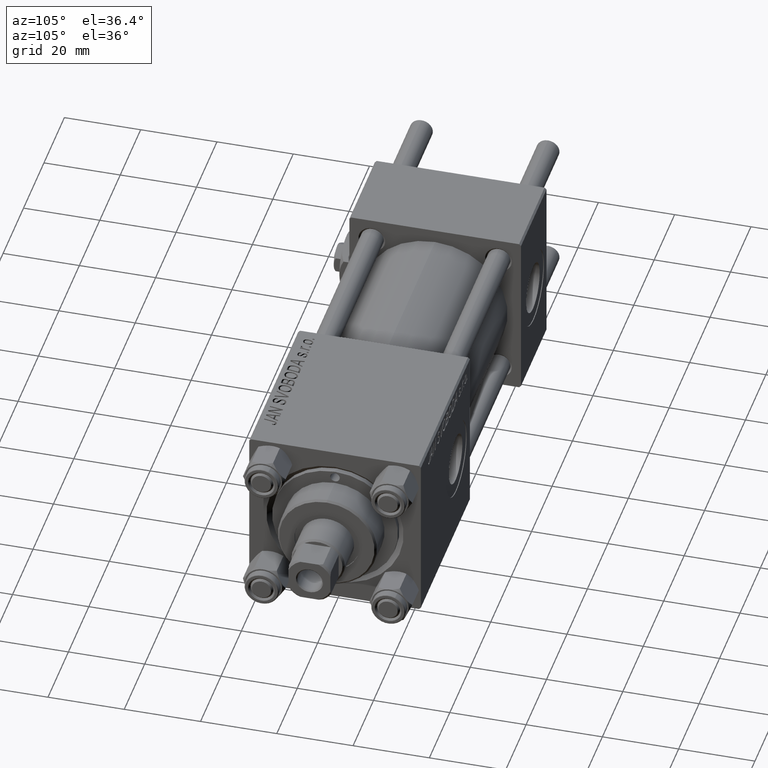
[diagram: clean part render]
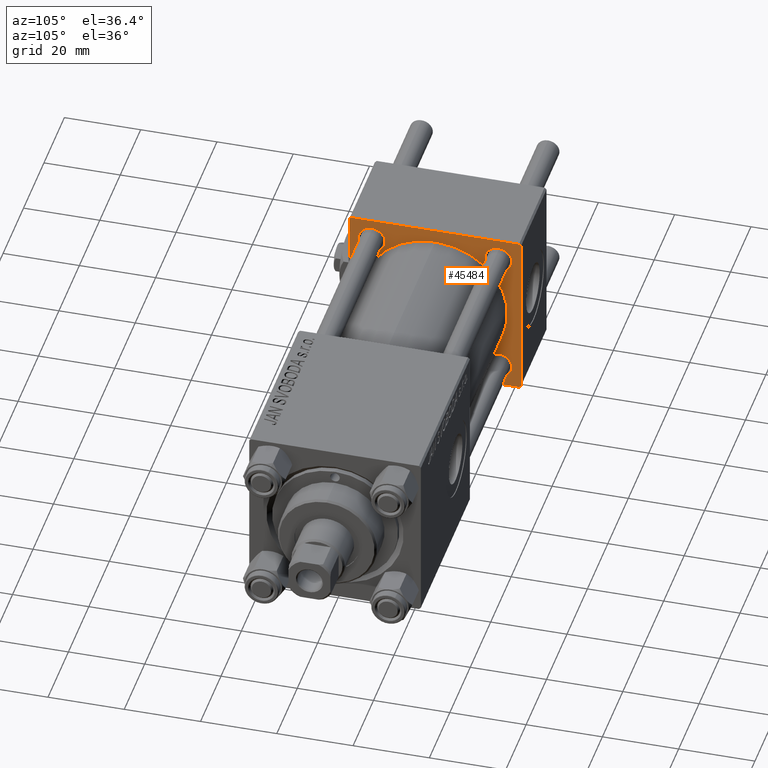
[diagram: same view with one face highlighted and labeled with its STEP entity id]
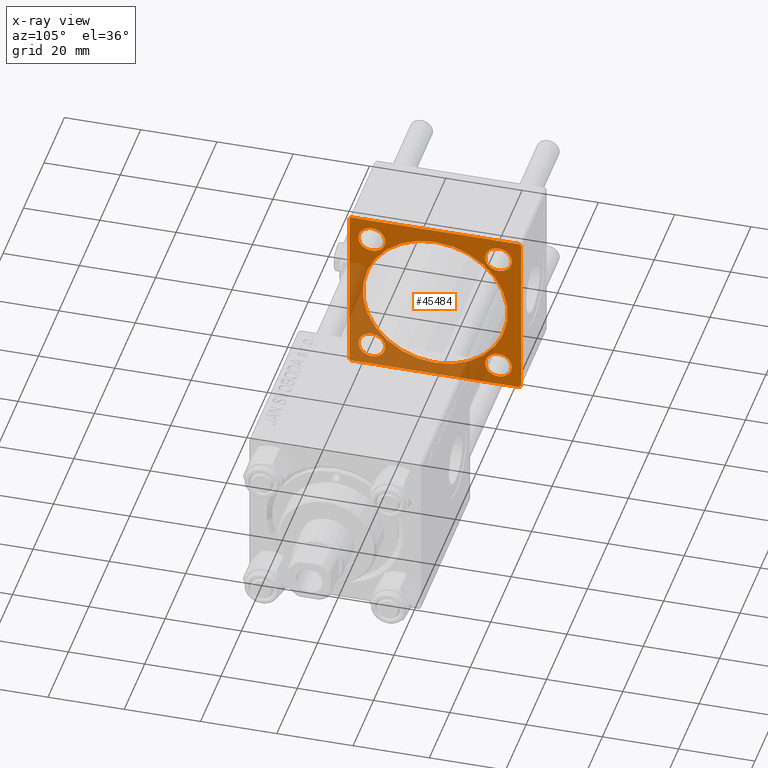
[diagram: x-ray of the same camera — body ghosted, the highlighted face saturated]
A machine part, auxiliary view. The second image highlights one B-rep face of the part: STEP entity #45484.
The next image is the same camera in x-ray: the body ghosted, the highlighted face saturated — about 39% of this face is hidden behind the body in this view.
In plain terms, the highlighted planar face has unit normal (-1, 0, 0).
Its self-contained STEP definition (entity closure, byte-faithful):
#247 = EDGE_CURVE ( 'NONE', #35598, #5724, #21584, .T. ) ;
#260 = VERTEX_POINT ( 'NONE', #11889 ) ;
#546 = CARTESIAN_POINT ( 'NONE',  ( 25.00000000000000000, 22.50000000000000000, 22.50000000000000355 ) ) ;
#644 = VECTOR ( 'NONE', #23056, 999.9999999999998863 ) ;
#1242 = AXIS2_PLACEMENT_3D ( 'NONE', #43999, #3753, #3238 ) ;
#1645 = EDGE_CURVE ( 'NONE', #32615, #41575, #32157, .T. ) ;
#1720 = VECTOR ( 'NONE', #51488, 1000.000000000000000 ) ;
#2254 = EDGE_CURVE ( 'NONE', #18439, #33497, #26197, .T. ) ;
#2538 = CARTESIAN_POINT ( 'NONE',  ( 25.00000000000000000, -21.99999999999997868, 22.50000000000000000 ) ) ;
#2968 = ORIENTED_EDGE ( 'NONE', *, *, #32660, .T. ) ;
#3170 = VECTOR ( 'NONE', #24591, 1000.000000000000000 ) ;
#3238 = DIRECTION ( 'NONE',  ( 0.000000000000000000, 0.000000000000000000, 1.000000000000000000 ) ) ;
#3718 = CARTESIAN_POINT ( 'NONE',  ( 25.00000000000000000, 16.59999999999999787, 20.10000000000000853 ) ) ;
#3753 = DIRECTION ( 'NONE',  ( -1.000000000000000000, 0.000000000000000000, -0.000000000000000000 ) ) ;
#3837 = CARTESIAN_POINT ( 'NONE',  ( 25.00000000000000000, 16.59999999999999787, -13.10000000000000142 ) ) ;
#3875 = CARTESIAN_POINT ( 'NONE',  ( 25.00000000000000000, 0.000000000000000000, 0.000000000000000000 ) ) ;
#4003 = CARTESIAN_POINT ( 'NONE',  ( 25.00000000000000000, -16.59999999999999076, -13.10000000000001741 ) ) ;
#4174 = CARTESIAN_POINT ( 'NONE',  ( 25.00000000000000000, 22.50000000000000000, 21.99999999999999645 ) ) ;
#4312 = EDGE_LOOP ( 'NONE', ( #27232, #24486 ) ) ;
#4452 = CARTESIAN_POINT ( 'NONE',  ( 25.00000000000000000, -21.99999999999998579, -22.50000000000000711 ) ) ;
#5176 = ORIENTED_EDGE ( 'NONE', *, *, #39419, .T. ) ;
#5454 = EDGE_CURVE ( 'NONE', #5724, #35598, #32604, .T. ) ;
#5724 = VERTEX_POINT ( 'NONE', #44207 ) ;
#5850 = VERTEX_POINT ( 'NONE', #4174 ) ;
#6125 = AXIS2_PLACEMENT_3D ( 'NONE', #46215, #42039, #11189 ) ;
#6384 = ORIENTED_EDGE ( 'NONE', *, *, #20049, .T. ) ;
#6708 = DIRECTION ( 'NONE',  ( -1.000000000000000000, 0.000000000000000000, -0.000000000000000000 ) ) ;
#6830 = CIRCLE ( 'NONE', #10148, 3.499999999999989342 ) ;
#7000 = ORIENTED_EDGE ( 'NONE', *, *, #1645, .T. ) ;
#7111 = CARTESIAN_POINT ( 'NONE',  ( 25.00000000000000000, -22.50000000000000000, 22.50000000000000000 ) ) ;
#7112 = LINE ( 'NONE', #46829, #644 ) ;
#9473 = ORIENTED_EDGE ( 'NONE', *, *, #16049, .T. ) ;
#9709 = VERTEX_POINT ( 'NONE', #22980 ) ;
#10148 = AXIS2_PLACEMENT_3D ( 'NONE', #21826, #37780, #26516 ) ;
#10364 = FACE_BOUND ( 'NONE', #29024, .T. ) ;
#11189 = DIRECTION ( 'NONE',  ( 0.000000000000000000, 0.000000000000000000, 1.000000000000000000 ) ) ;
#11397 = FACE_BOUND ( 'NONE', #4312, .T. ) ;
#11754 = DIRECTION ( 'NONE',  ( 0.000000000000000000, 0.000000000000000000, 1.000000000000000000 ) ) ;
#11889 = CARTESIAN_POINT ( 'NONE',  ( 25.00000000000000000, 22.50000000000000000, -21.99999999999996803 ) ) ;
#12669 = LINE ( 'NONE', #33055, #16346 ) ;
#12851 = EDGE_CURVE ( 'NONE', #35768, #47583, #6830, .T. ) ;
#13371 = VERTEX_POINT ( 'NONE', #26130 ) ;
#13393 = AXIS2_PLACEMENT_3D ( 'NONE', #33157, #45933, #30015 ) ;
#14353 = ORIENTED_EDGE ( 'NONE', *, *, #46131, .F. ) ;
#14881 = VERTEX_POINT ( 'NONE', #3718 ) ;
#15145 = CARTESIAN_POINT ( 'NONE',  ( 25.00000000000000000, -16.59999999999999076, 16.60000000000000853 ) ) ;
#15384 = DIRECTION ( 'NONE',  ( 0.000000000000000000, -0.7071067811865474617, 0.7071067811865474617 ) ) ;
#16049 = EDGE_CURVE ( 'NONE', #25769, #14881, #45329, .T. ) ;
#16346 = VECTOR ( 'NONE', #28629, 1000.000000000000000 ) ;
#16602 = DIRECTION ( 'NONE',  ( 0.000000000000000000, -1.000000000000000000, -2.312964634635742957E-16 ) ) ;
#16734 = AXIS2_PLACEMENT_3D ( 'NONE', #16826, #40359, #32775 ) ;
#16826 = CARTESIAN_POINT ( 'NONE',  ( 25.00000000000000000, 16.59999999999999787, -16.60000000000000497 ) ) ;
#17044 = CARTESIAN_POINT ( 'NONE',  ( 25.00000000000000000, -22.50000000000000000, 22.00000000000000000 ) ) ;
#17340 = EDGE_CURVE ( 'NONE', #13371, #41575, #32300, .T. ) ;
#17361 = CARTESIAN_POINT ( 'NONE',  ( 25.00000000000000000, -16.59999999999999076, 13.10000000000001386 ) ) ;
#17441 = CARTESIAN_POINT ( 'NONE',  ( 25.00000000000000000, 2.326828918379970970E-15, -19.00000000000000000 ) ) ;
#18181 = CARTESIAN_POINT ( 'NONE',  ( 25.00000000000000000, 22.50000000000000000, 22.50000000000000355 ) ) ;
#18439 = VERTEX_POINT ( 'NONE', #17441 ) ;
#18610 = LINE ( 'NONE', #7111, #19657 ) ;
#19657 = VECTOR ( 'NONE', #51527, 1000.000000000000000 ) ;
#19817 = DIRECTION ( 'NONE',  ( 1.000000000000000000, -0.000000000000000000, 0.000000000000000000 ) ) ;
#20049 = EDGE_CURVE ( 'NONE', #9709, #22565, #28825, .T. ) ;
#20769 = AXIS2_PLACEMENT_3D ( 'NONE', #44282, #40879, #36453 ) ;
#21157 = CARTESIAN_POINT ( 'NONE',  ( 25.00000000000000000, 21.99999999999999289, 22.50000000000000355 ) ) ;
#21274 = CARTESIAN_POINT ( 'NONE',  ( 25.00000000000000000, -21.99999999999997158, -22.50000000000000711 ) ) ;
#21584 = CIRCLE ( 'NONE', #20769, 3.500000000000003109 ) ;
#21826 = CARTESIAN_POINT ( 'NONE',  ( 25.00000000000000000, -16.59999999999999076, -16.60000000000000853 ) ) ;
#22388 = FACE_BOUND ( 'NONE', #30151, .T. ) ;
#22529 = EDGE_CURVE ( 'NONE', #13371, #260, #12669, .T. ) ;
#22565 = VERTEX_POINT ( 'NONE', #17361 ) ;
#22980 = CARTESIAN_POINT ( 'NONE',  ( 25.00000000000000000, -16.59999999999999076, 20.10000000000000142 ) ) ;
#23056 = DIRECTION ( 'NONE',  ( -0.000000000000000000, -0.7071067811865525687, -0.7071067811865425767 ) ) ;
#23084 = ORIENTED_EDGE ( 'NONE', *, *, #2254, .F. ) ;
#23459 = ORIENTED_EDGE ( 'NONE', *, *, #50645, .T. ) ;
#24486 = ORIENTED_EDGE ( 'NONE', *, *, #247, .T. ) ;
#24591 = DIRECTION ( 'NONE',  ( 0.000000000000000000, 0.000000000000000000, -1.000000000000000000 ) ) ;
#25201 = EDGE_CURVE ( 'NONE', #47675, #32615, #18610, .T. ) ;
#25769 = VERTEX_POINT ( 'NONE', #32409 ) ;
#25886 = CIRCLE ( 'NONE', #13393, 3.499999999999989342 ) ;
#26130 = CARTESIAN_POINT ( 'NONE',  ( 25.00000000000000000, 21.99999999999999289, -22.49999999999999645 ) ) ;
#26197 = CIRCLE ( 'NONE', #47880, 19.00000000000000000 ) ;
#26307 = FACE_OUTER_BOUND ( 'NONE', #28254, .T. ) ;
#26482 = AXIS2_PLACEMENT_3D ( 'NONE', #3875, #19817, #51161 ) ;
#26516 = DIRECTION ( 'NONE',  ( 0.000000000000000000, 0.000000000000000000, 1.000000000000000000 ) ) ;
#26567 = DIRECTION ( 'NONE',  ( -0.000000000000000000, 0.000000000000000000, 1.000000000000000000 ) ) ;
#27232 = ORIENTED_EDGE ( 'NONE', *, *, #5454, .T. ) ;
#27343 = FACE_BOUND ( 'NONE', #30097, .T. ) ;
#27962 = CIRCLE ( 'NONE', #1242, 3.500000000000003109 ) ;
#28237 = ORIENTED_EDGE ( 'NONE', *, *, #17340, .F. ) ;
#28254 = EDGE_LOOP ( 'NONE', ( #28237, #29146, #14353, #5176, #51175, #34396, #38516, #7000 ) ) ;
#28629 = DIRECTION ( 'NONE',  ( -0.000000000000000000, 0.7071067811865426878, 0.7071067811865524577 ) ) ;
#28782 = LINE ( 'NONE', #546, #3170 ) ;
#28825 = CIRCLE ( 'NONE', #43841, 3.499999999999992895 ) ;
#29024 = EDGE_LOOP ( 'NONE', ( #2968, #6384 ) ) ;
#29072 = VERTEX_POINT ( 'NONE', #21157 ) ;
#29146 = ORIENTED_EDGE ( 'NONE', *, *, #22529, .T. ) ;
#29346 = EDGE_CURVE ( 'NONE', #33497, #18439, #42336, .T. ) ;
#30015 = DIRECTION ( 'NONE',  ( 0.000000000000000000, 0.000000000000000000, 1.000000000000000000 ) ) ;
#30097 = EDGE_LOOP ( 'NONE', ( #9473, #47600 ) ) ;
#30151 = EDGE_LOOP ( 'NONE', ( #46863, #23459 ) ) ;
#32012 = EDGE_CURVE ( 'NONE', #29072, #42588, #49801, .T. ) ;
#32034 = CARTESIAN_POINT ( 'NONE',  ( 25.00000000000000000, 22.50000000000000000, -22.49999999999999645 ) ) ;
#32073 = AXIS2_PLACEMENT_3D ( 'NONE', #15145, #42853, #11754 ) ;
#32157 = LINE ( 'NONE', #4452, #1720 ) ;
#32300 = LINE ( 'NONE', #32034, #44547 ) ;
#32389 = CARTESIAN_POINT ( 'NONE',  ( 25.00000000000000000, 21.99999999999999289, 22.50000000000000355 ) ) ;
#32409 = CARTESIAN_POINT ( 'NONE',  ( 25.00000000000000000, 16.59999999999999787, 13.10000000000000142 ) ) ;
#32604 = CIRCLE ( 'NONE', #16734, 3.500000000000003109 ) ;
#32615 = VERTEX_POINT ( 'NONE', #46768 ) ;
#32660 = EDGE_CURVE ( 'NONE', #22565, #9709, #51219, .T. ) ;
#32775 = DIRECTION ( 'NONE',  ( 0.000000000000000000, 0.000000000000000000, 1.000000000000000000 ) ) ;
#33055 = CARTESIAN_POINT ( 'NONE',  ( 25.00000000000000000, 22.50000000000000000, -21.99999999999998224 ) ) ;
#33157 = CARTESIAN_POINT ( 'NONE',  ( 25.00000000000000000, -16.59999999999999076, -16.60000000000000853 ) ) ;
#33497 = VERTEX_POINT ( 'NONE', #35808 ) ;
#33603 = CARTESIAN_POINT ( 'NONE',  ( 25.00000000000000000, -16.59999999999999076, -20.09999999999999787 ) ) ;
#34126 = DIRECTION ( 'NONE',  ( 0.000000000000000000, -1.000000000000000000, -7.709882115452476934E-17 ) ) ;
#34396 = ORIENTED_EDGE ( 'NONE', *, *, #44134, .T. ) ;
#34926 = PLANE ( 'NONE',  #46555 ) ;
#35051 = EDGE_CURVE ( 'NONE', #14881, #25769, #27962, .T. ) ;
#35424 = CARTESIAN_POINT ( 'NONE',  ( 25.00000000000000000, 0.000000000000000000, 0.000000000000000000 ) ) ;
#35472 = DIRECTION ( 'NONE',  ( 0.000000000000000000, 0.000000000000000000, 1.000000000000000000 ) ) ;
#35476 = ORIENTED_EDGE ( 'NONE', *, *, #29346, .F. ) ;
#35598 = VERTEX_POINT ( 'NONE', #3837 ) ;
#35768 = VERTEX_POINT ( 'NONE', #33603 ) ;
#35808 = CARTESIAN_POINT ( 'NONE',  ( 25.00000000000000000, 0.000000000000000000, 19.00000000000000000 ) ) ;
#36453 = DIRECTION ( 'NONE',  ( 0.000000000000000000, 0.000000000000000000, 1.000000000000000000 ) ) ;
#37780 = DIRECTION ( 'NONE',  ( -1.000000000000000000, 0.000000000000000000, -0.000000000000000000 ) ) ;
#38516 = ORIENTED_EDGE ( 'NONE', *, *, #25201, .T. ) ;
#39021 = EDGE_LOOP ( 'NONE', ( #35476, #23084 ) ) ;
#39419 = EDGE_CURVE ( 'NONE', #5850, #29072, #44138, .T. ) ;
#40136 = DIRECTION ( 'NONE',  ( 0.000000000000000000, 0.000000000000000000, 1.000000000000000000 ) ) ;
#40359 = DIRECTION ( 'NONE',  ( -1.000000000000000000, 0.000000000000000000, -0.000000000000000000 ) ) ;
#40879 = DIRECTION ( 'NONE',  ( -1.000000000000000000, 0.000000000000000000, -0.000000000000000000 ) ) ;
#41575 = VERTEX_POINT ( 'NONE', #21274 ) ;
#42039 = DIRECTION ( 'NONE',  ( -1.000000000000000000, 0.000000000000000000, -0.000000000000000000 ) ) ;
#42161 = VECTOR ( 'NONE', #15384, 1000.000000000000114 ) ;
#42336 = CIRCLE ( 'NONE', #26482, 19.00000000000000000 ) ;
#42588 = VERTEX_POINT ( 'NONE', #2538 ) ;
#42853 = DIRECTION ( 'NONE',  ( -1.000000000000000000, 0.000000000000000000, -0.000000000000000000 ) ) ;
#43278 = FACE_BOUND ( 'NONE', #39021, .T. ) ;
#43571 = CARTESIAN_POINT ( 'NONE',  ( 25.00000000000000000, -16.59999999999999076, 16.60000000000000853 ) ) ;
#43841 = AXIS2_PLACEMENT_3D ( 'NONE', #43571, #44089, #35472 ) ;
#43999 = CARTESIAN_POINT ( 'NONE',  ( 25.00000000000000000, 16.59999999999999787, 16.60000000000000497 ) ) ;
#44089 = DIRECTION ( 'NONE',  ( -1.000000000000000000, 0.000000000000000000, -0.000000000000000000 ) ) ;
#44134 = EDGE_CURVE ( 'NONE', #42588, #47675, #7112, .T. ) ;
#44138 = LINE ( 'NONE', #32389, #42161 ) ;
#44207 = CARTESIAN_POINT ( 'NONE',  ( 25.00000000000000000, 16.59999999999999787, -20.10000000000000853 ) ) ;
#44282 = CARTESIAN_POINT ( 'NONE',  ( 25.00000000000000000, 16.59999999999999787, -16.60000000000000497 ) ) ;
#44547 = VECTOR ( 'NONE', #16602, 1000.000000000000000 ) ;
#45329 = CIRCLE ( 'NONE', #6125, 3.500000000000003109 ) ;
#45484 = ADVANCED_FACE ( 'NONE', ( #22388, #11397, #10364, #27343, #43278, #26307 ), #34926, .F. ) ;
#45933 = DIRECTION ( 'NONE',  ( -1.000000000000000000, 0.000000000000000000, -0.000000000000000000 ) ) ;
#46131 = EDGE_CURVE ( 'NONE', #5850, #260, #28782, .T. ) ;
#46215 = CARTESIAN_POINT ( 'NONE',  ( 25.00000000000000000, 16.59999999999999787, 16.60000000000000497 ) ) ;
#46555 = AXIS2_PLACEMENT_3D ( 'NONE', #50859, #6708, #26567 ) ;
#46768 = CARTESIAN_POINT ( 'NONE',  ( 25.00000000000000000, -22.50000000000000000, -21.99999999999997158 ) ) ;
#46829 = CARTESIAN_POINT ( 'NONE',  ( 25.00000000000000000, -22.50000000000000000, 22.00000000000000000 ) ) ;
#46863 = ORIENTED_EDGE ( 'NONE', *, *, #12851, .T. ) ;
#47077 = VECTOR ( 'NONE', #34126, 1000.000000000000000 ) ;
#47583 = VERTEX_POINT ( 'NONE', #4003 ) ;
#47600 = ORIENTED_EDGE ( 'NONE', *, *, #35051, .T. ) ;
#47675 = VERTEX_POINT ( 'NONE', #17044 ) ;
#47701 = DIRECTION ( 'NONE',  ( 1.000000000000000000, -0.000000000000000000, 0.000000000000000000 ) ) ;
#47880 = AXIS2_PLACEMENT_3D ( 'NONE', #35424, #47701, #40136 ) ;
#49801 = LINE ( 'NONE', #18181, #47077 ) ;
#50645 = EDGE_CURVE ( 'NONE', #47583, #35768, #25886, .T. ) ;
#50859 = CARTESIAN_POINT ( 'NONE',  ( 25.00000000000000000, 0.000000000000000000, 0.000000000000000000 ) ) ;
#51161 = DIRECTION ( 'NONE',  ( 0.000000000000000000, 0.000000000000000000, 1.000000000000000000 ) ) ;
#51175 = ORIENTED_EDGE ( 'NONE', *, *, #32012, .T. ) ;
#51219 = CIRCLE ( 'NONE', #32073, 3.499999999999992895 ) ;
#51488 = DIRECTION ( 'NONE',  ( 0.000000000000000000, 0.7071067811865426878, -0.7071067811865524577 ) ) ;
#51527 = DIRECTION ( 'NONE',  ( 0.000000000000000000, 0.000000000000000000, -1.000000000000000000 ) ) ;